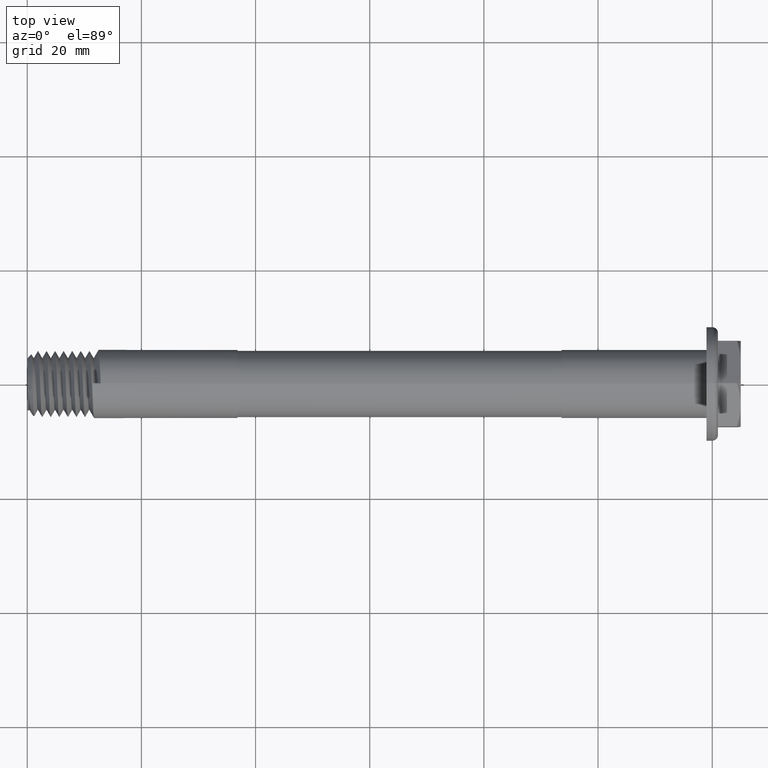
[diagram: clean part render]
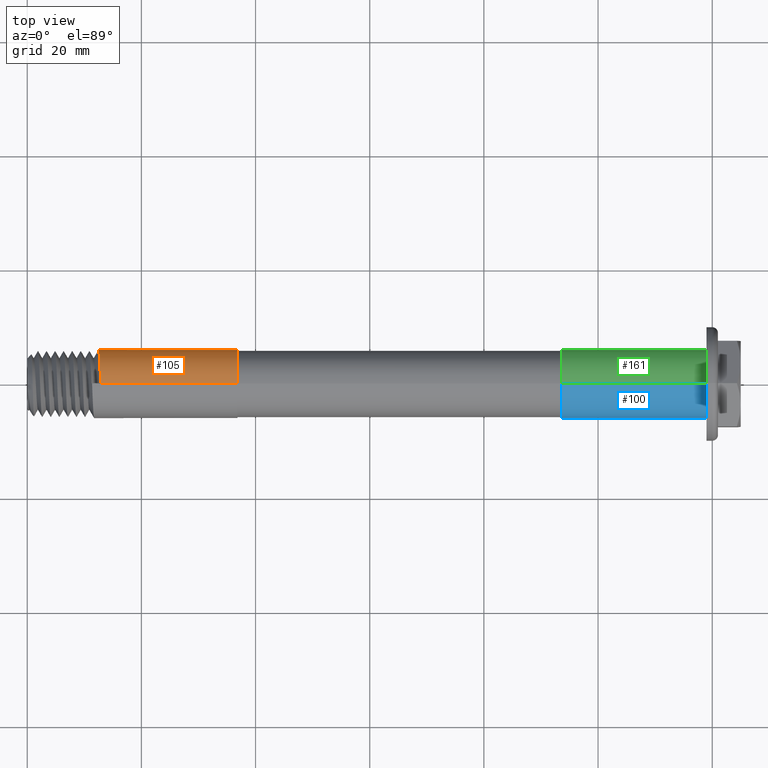
[diagram: same view with three faces highlighted in distinct colors, each labeled with its STEP entity id]
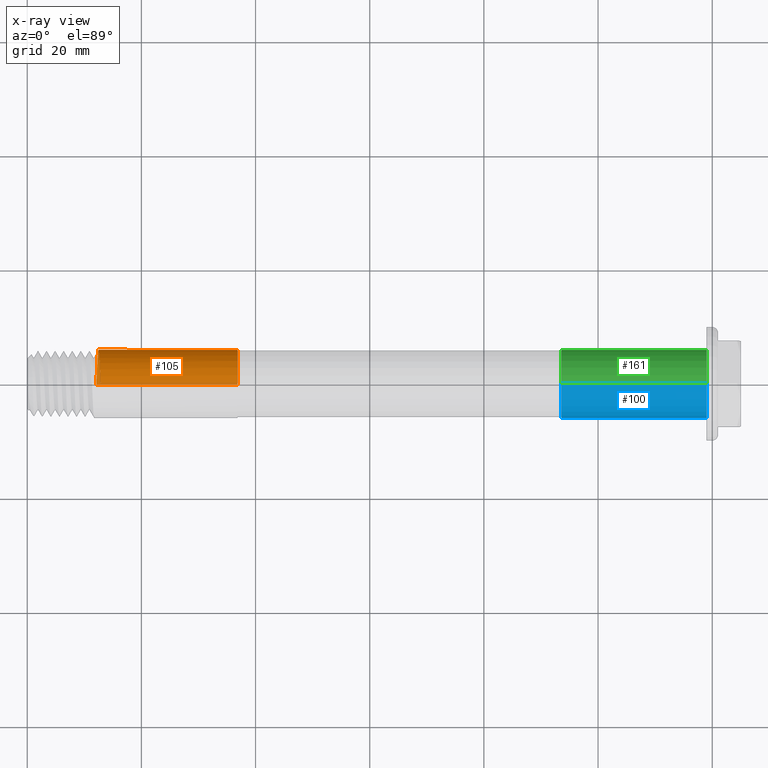
[diagram: x-ray of the same camera — body ghosted, the three highlighted faces saturated]
A machine part, top view with three faces highlighted in distinct colors.
The next image is the same camera in x-ray (body ghosted, the three faces saturated) — at least one of them is partly hidden behind the body in this view.
Their STEP definitions:

[orange] entity #105 — the highlighted cylindrical surface (edge-blend (fillet) strip) has radius 5.9817 mm, axis along (-1, 0, -0).
#9 = CARTESIAN_POINT ( 'NONE',  ( 119.0000000000000000, 7.325469758459720600E-016, -5.981699999999998200 ) ) ;
#21 = DIRECTION ( 'NONE',  ( -1.000000000000000000, 0.0000000000000000000, -0.0000000000000000000 ) ) ;
#105 = ADVANCED_FACE ( 'NONE', ( #151 ), #2159, .T. ) ;
#107 = VERTEX_POINT ( 'NONE', #1574 ) ;
#151 = FACE_OUTER_BOUND ( 'NONE', #182, .T. ) ;
#182 = EDGE_LOOP ( 'NONE', ( #537, #356, #423, #454 ) ) ;
#356 = ORIENTED_EDGE ( 'NONE', *, *, #702, .T. ) ;
#365 = DIRECTION ( 'NONE',  ( -1.000000000000000000, 0.0000000000000000000, -0.0000000000000000000 ) ) ;
#423 = ORIENTED_EDGE ( 'NONE', *, *, #1634, .F. ) ;
#454 = ORIENTED_EDGE ( 'NONE', *, *, #1631, .F. ) ;
#456 =( BOUNDED_CURVE ( )  B_SPLINE_CURVE ( 2, ( #2046, #496, #1525, #1468, #1481, #1061, #2272, #2075, #2263 ),
 .UNSPECIFIED., .F., .T. ) 
 B_SPLINE_CURVE_WITH_KNOTS ( ( 3, 2, 2, 2, 3 ),
 ( 0.0000000000000000000, 0.1250000000000042700, 0.2500000000000085500, 0.3750000000000128200, 0.5000000000000171000 ),
 .UNSPECIFIED. ) 
 CURVE ( )  GEOMETRIC_REPRESENTATION_ITEM ( )  RATIONAL_B_SPLINE_CURVE ( ( 1.000000000000000000, 0.9238795325112867400, 1.000000000000000000, 0.9238795325112867400, 1.000000000000000000, 0.9238795325112867400, 1.000000000000000000, 0.9238795325112763000, 1.000000000000010400 ) ) 
 REPRESENTATION_ITEM ( '' )  );
#479 = VECTOR ( 'NONE', #1358, 1000.000000000000000 ) ;
#496 = CARTESIAN_POINT ( 'NONE',  ( 12.76170989385826400, 2.477701266046518300, 5.981700000000256700 ) ) ;
#520 = LINE ( 'NONE', #1374, #479 ) ;
#537 = ORIENTED_EDGE ( 'NONE', *, *, #1486, .F. ) ;
#702 = EDGE_CURVE ( 'NONE', #937, #1025, #1595, .T. ) ;
#937 = VERTEX_POINT ( 'NONE', #1780 ) ;
#1000 = VERTEX_POINT ( 'NONE', #2063 ) ;
#1025 = VERTEX_POINT ( 'NONE', #2034 ) ;
#1030 = AXIS2_PLACEMENT_3D ( 'NONE', #2260, #365, #2161 ) ;
#1061 = CARTESIAN_POINT ( 'NONE',  ( 12.38670989385826700, 5.981700000000256700, -2.477701266046514700 ) ) ;
#1103 = AXIS2_PLACEMENT_3D ( 'NONE', #1805, #1800, #1794 ) ;
#1358 = DIRECTION ( 'NONE',  ( -1.000000000000000000, 0.0000000000000000000, -0.0000000000000000000 ) ) ;
#1374 = CARTESIAN_POINT ( 'NONE',  ( 119.0000000000000000, 0.0000000000000000000, 5.981699999999998200 ) ) ;
#1468 = CARTESIAN_POINT ( 'NONE',  ( 12.57420989385828000, 5.981699999999739800, 2.477701266047768400 ) ) ;
#1481 = CARTESIAN_POINT ( 'NONE',  ( 12.48045989385826400, 5.981699999999998200, 6.314393452555577800E-013 ) ) ;
#1486 = EDGE_CURVE ( 'NONE', #937, #1000, #2035, .T. ) ;
#1525 = CARTESIAN_POINT ( 'NONE',  ( 12.66795989385827100, 4.229700633023127500, 4.229700633024018300 ) ) ;
#1574 = CARTESIAN_POINT ( 'NONE',  ( 12.85545989385827800, -6.273193770001128700E-013, 5.981699999999999100 ) ) ;
#1595 = LINE ( 'NONE', #9, #1609 ) ;
#1609 = VECTOR ( 'NONE', #21, 1000.000000000000000 ) ;
#1631 = EDGE_CURVE ( 'NONE', #1000, #107, #520, .T. ) ;
#1634 = EDGE_CURVE ( 'NONE', #107, #1025, #456, .T. ) ;
#1780 = CARTESIAN_POINT ( 'NONE',  ( 36.82999999999999800, 7.325469758459720600E-016, -5.981699999999998200 ) ) ;
#1794 = DIRECTION ( 'NONE',  ( 0.0000000000000000000, 0.0000000000000000000, -1.000000000000000000 ) ) ;
#1800 = DIRECTION ( 'NONE',  ( 1.000000000000000000, 0.0000000000000000000, 0.0000000000000000000 ) ) ;
#1805 = CARTESIAN_POINT ( 'NONE',  ( 36.82999999999999800, 0.0000000000000000000, 0.0000000000000000000 ) ) ;
#2034 = CARTESIAN_POINT ( 'NONE',  ( 12.10545989385824900, 3.031127959780480900E-016, -5.981699999999999100 ) ) ;
#2035 = CIRCLE ( 'NONE', #1103, 5.981699999999998200 ) ;
#2046 = CARTESIAN_POINT ( 'NONE',  ( 12.85545989385827800, -6.273193770001128700E-013, 5.981699999999999100 ) ) ;
#2063 = CARTESIAN_POINT ( 'NONE',  ( 36.82999999999999800, 0.0000000000000000000, 5.981699999999998200 ) ) ;
#2075 = CARTESIAN_POINT ( 'NONE',  ( 12.19920989385827200, 2.477701266047508200, -5.981699999999997400 ) ) ;
#2159 = CYLINDRICAL_SURFACE ( 'NONE', #1030, 5.981699999999998200 ) ;
#2161 = DIRECTION ( 'NONE',  ( 0.0000000000000000000, 0.0000000000000000000, 1.000000000000000000 ) ) ;
#2260 = CARTESIAN_POINT ( 'NONE',  ( 119.0000000000000000, 0.0000000000000000000, 0.0000000000000000000 ) ) ;
#2263 = CARTESIAN_POINT ( 'NONE',  ( 12.10545989385824900, 3.031127959780480900E-016, -5.981699999999999100 ) ) ;
#2272 = CARTESIAN_POINT ( 'NONE',  ( 12.29295989385828500, 4.229700633024013900, -4.229700633023130200 ) ) ;

[blue] entity #100 — the highlighted cylindrical surface (edge-blend (fillet) strip) has radius 5.9817 mm, axis along (-1, 0, -0).
#13 = DIRECTION ( 'NONE',  ( -1.000000000000000000, 0.0000000000000000000, -0.0000000000000000000 ) ) ;
#14 = ORIENTED_EDGE ( 'NONE', *, *, #1795, .T. ) ;
#26 = ORIENTED_EDGE ( 'NONE', *, *, #2165, .F. ) ;
#52 = ORIENTED_EDGE ( 'NONE', *, *, #804, .F. ) ;
#100 = ADVANCED_FACE ( 'NONE', ( #1190 ), #158, .T. ) ;
#101 = VERTEX_POINT ( 'NONE', #1741 ) ;
#112 = DIRECTION ( 'NONE',  ( 0.0000000000000000000, 0.0000000000000000000, -1.000000000000000000 ) ) ;
#141 = DIRECTION ( 'NONE',  ( 1.000000000000000000, 0.0000000000000000000, 0.0000000000000000000 ) ) ;
#146 = CARTESIAN_POINT ( 'NONE',  ( 119.0000000000000000, 0.0000000000000000000, 0.0000000000000000000 ) ) ;
#158 = CYLINDRICAL_SURFACE ( 'NONE', #1051, 5.981699999999998200 ) ;
#285 = DIRECTION ( 'NONE',  ( 0.0000000000000000000, 0.0000000000000000000, 1.000000000000000000 ) ) ;
#352 = VERTEX_POINT ( 'NONE', #855 ) ;
#436 = LINE ( 'NONE', #2163, #531 ) ;
#531 = VECTOR ( 'NONE', #2095, 1000.000000000000000 ) ;
#587 = EDGE_CURVE ( 'NONE', #1403, #1755, #1636, .T. ) ;
#730 = EDGE_LOOP ( 'NONE', ( #52, #26, #14, #1667 ) ) ;
#804 = EDGE_CURVE ( 'NONE', #352, #1403, #1587, .T. ) ;
#855 = CARTESIAN_POINT ( 'NONE',  ( 119.0000000000000000, 7.325469758459720600E-016, -5.981699999999998200 ) ) ;
#928 = CARTESIAN_POINT ( 'NONE',  ( 93.59999999999999400, 0.0000000000000000000, 5.981699999999998200 ) ) ;
#1051 = AXIS2_PLACEMENT_3D ( 'NONE', #1408, #1289, #285 ) ;
#1167 = CARTESIAN_POINT ( 'NONE',  ( 119.0000000000000000, 7.325469758459720600E-016, -5.981699999999998200 ) ) ;
#1190 = FACE_OUTER_BOUND ( 'NONE', #730, .T. ) ;
#1218 = VECTOR ( 'NONE', #13, 1000.000000000000000 ) ;
#1289 = DIRECTION ( 'NONE',  ( -1.000000000000000000, 0.0000000000000000000, -0.0000000000000000000 ) ) ;
#1403 = VERTEX_POINT ( 'NONE', #1655 ) ;
#1408 = CARTESIAN_POINT ( 'NONE',  ( 119.0000000000000000, 0.0000000000000000000, 0.0000000000000000000 ) ) ;
#1421 = AXIS2_PLACEMENT_3D ( 'NONE', #2190, #2216, #2193 ) ;
#1587 = LINE ( 'NONE', #1167, #1218 ) ;
#1636 = CIRCLE ( 'NONE', #1421, 5.981699999999998200 ) ;
#1655 = CARTESIAN_POINT ( 'NONE',  ( 93.59999999999999400, 7.325469758459720600E-016, -5.981699999999998200 ) ) ;
#1667 = ORIENTED_EDGE ( 'NONE', *, *, #587, .F. ) ;
#1741 = CARTESIAN_POINT ( 'NONE',  ( 119.0000000000000000, 0.0000000000000000000, 5.981699999999998200 ) ) ;
#1755 = VERTEX_POINT ( 'NONE', #928 ) ;
#1795 = EDGE_CURVE ( 'NONE', #101, #1755, #436, .T. ) ;
#1796 = CIRCLE ( 'NONE', #2146, 5.981699999999998200 ) ;
#2095 = DIRECTION ( 'NONE',  ( -1.000000000000000000, 0.0000000000000000000, -0.0000000000000000000 ) ) ;
#2146 = AXIS2_PLACEMENT_3D ( 'NONE', #146, #141, #112 ) ;
#2163 = CARTESIAN_POINT ( 'NONE',  ( 119.0000000000000000, 0.0000000000000000000, 5.981699999999998200 ) ) ;
#2165 = EDGE_CURVE ( 'NONE', #101, #352, #1796, .T. ) ;
#2190 = CARTESIAN_POINT ( 'NONE',  ( 93.59999999999999400, 0.0000000000000000000, 0.0000000000000000000 ) ) ;
#2193 = DIRECTION ( 'NONE',  ( 0.0000000000000000000, 0.0000000000000000000, 1.000000000000000000 ) ) ;
#2216 = DIRECTION ( 'NONE',  ( -1.000000000000000000, 0.0000000000000000000, 0.0000000000000000000 ) ) ;

[green] entity #161 — the highlighted cylindrical surface (edge-blend (fillet) strip) has radius 5.9817 mm, axis along (-1, 0, -0).
#13 = DIRECTION ( 'NONE',  ( -1.000000000000000000, 0.0000000000000000000, -0.0000000000000000000 ) ) ;
#57 = ORIENTED_EDGE ( 'NONE', *, *, #1795, .F. ) ;
#81 = ORIENTED_EDGE ( 'NONE', *, *, #1411, .F. ) ;
#88 = ORIENTED_EDGE ( 'NONE', *, *, #804, .T. ) ;
#101 = VERTEX_POINT ( 'NONE', #1741 ) ;
#143 = AXIS2_PLACEMENT_3D ( 'NONE', #957, #1307, #791 ) ;
#161 = ADVANCED_FACE ( 'NONE', ( #1316 ), #1054, .T. ) ;
#183 = AXIS2_PLACEMENT_3D ( 'NONE', #1825, #1806, #1659 ) ;
#207 = ORIENTED_EDGE ( 'NONE', *, *, #1469, .F. ) ;
#352 = VERTEX_POINT ( 'NONE', #855 ) ;
#436 = LINE ( 'NONE', #2163, #531 ) ;
#531 = VECTOR ( 'NONE', #2095, 1000.000000000000000 ) ;
#705 = DIRECTION ( 'NONE',  ( 0.0000000000000000000, 0.0000000000000000000, 1.000000000000000000 ) ) ;
#791 = DIRECTION ( 'NONE',  ( 0.0000000000000000000, 0.0000000000000000000, -1.000000000000000000 ) ) ;
#804 = EDGE_CURVE ( 'NONE', #352, #1403, #1587, .T. ) ;
#830 = AXIS2_PLACEMENT_3D ( 'NONE', #2142, #1718, #705 ) ;
#855 = CARTESIAN_POINT ( 'NONE',  ( 119.0000000000000000, 7.325469758459720600E-016, -5.981699999999998200 ) ) ;
#915 = EDGE_LOOP ( 'NONE', ( #207, #88, #81, #57 ) ) ;
#928 = CARTESIAN_POINT ( 'NONE',  ( 93.59999999999999400, 0.0000000000000000000, 5.981699999999998200 ) ) ;
#957 = CARTESIAN_POINT ( 'NONE',  ( 119.0000000000000000, 0.0000000000000000000, 0.0000000000000000000 ) ) ;
#1054 = CYLINDRICAL_SURFACE ( 'NONE', #830, 5.981699999999998200 ) ;
#1167 = CARTESIAN_POINT ( 'NONE',  ( 119.0000000000000000, 7.325469758459720600E-016, -5.981699999999998200 ) ) ;
#1218 = VECTOR ( 'NONE', #13, 1000.000000000000000 ) ;
#1307 = DIRECTION ( 'NONE',  ( 1.000000000000000000, 0.0000000000000000000, 0.0000000000000000000 ) ) ;
#1316 = FACE_OUTER_BOUND ( 'NONE', #915, .T. ) ;
#1403 = VERTEX_POINT ( 'NONE', #1655 ) ;
#1411 = EDGE_CURVE ( 'NONE', #1755, #1403, #1967, .T. ) ;
#1469 = EDGE_CURVE ( 'NONE', #352, #101, #1961, .T. ) ;
#1587 = LINE ( 'NONE', #1167, #1218 ) ;
#1655 = CARTESIAN_POINT ( 'NONE',  ( 93.59999999999999400, 7.325469758459720600E-016, -5.981699999999998200 ) ) ;
#1659 = DIRECTION ( 'NONE',  ( 0.0000000000000000000, 0.0000000000000000000, 1.000000000000000000 ) ) ;
#1718 = DIRECTION ( 'NONE',  ( -1.000000000000000000, 0.0000000000000000000, -0.0000000000000000000 ) ) ;
#1741 = CARTESIAN_POINT ( 'NONE',  ( 119.0000000000000000, 0.0000000000000000000, 5.981699999999998200 ) ) ;
#1755 = VERTEX_POINT ( 'NONE', #928 ) ;
#1795 = EDGE_CURVE ( 'NONE', #101, #1755, #436, .T. ) ;
#1806 = DIRECTION ( 'NONE',  ( -1.000000000000000000, 0.0000000000000000000, 0.0000000000000000000 ) ) ;
#1825 = CARTESIAN_POINT ( 'NONE',  ( 93.59999999999999400, 0.0000000000000000000, 0.0000000000000000000 ) ) ;
#1961 = CIRCLE ( 'NONE', #143, 5.981699999999998200 ) ;
#1967 = CIRCLE ( 'NONE', #183, 5.981699999999998200 ) ;
#2095 = DIRECTION ( 'NONE',  ( -1.000000000000000000, 0.0000000000000000000, -0.0000000000000000000 ) ) ;
#2142 = CARTESIAN_POINT ( 'NONE',  ( 119.0000000000000000, 0.0000000000000000000, 0.0000000000000000000 ) ) ;
#2163 = CARTESIAN_POINT ( 'NONE',  ( 119.0000000000000000, 0.0000000000000000000, 5.981699999999998200 ) ) ;